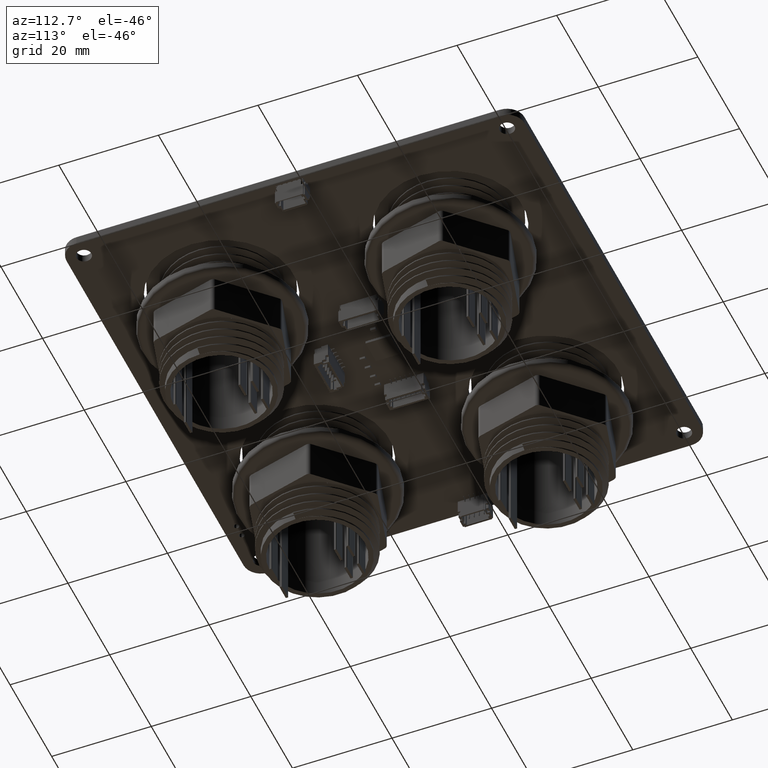
[diagram: clean part render]
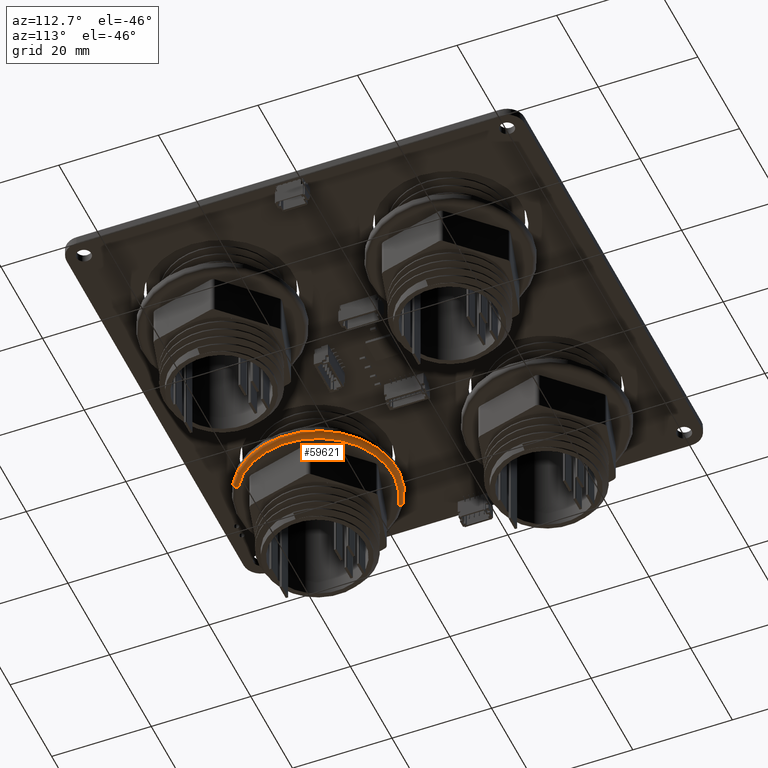
[diagram: same view with one face highlighted and labeled with its STEP entity id]
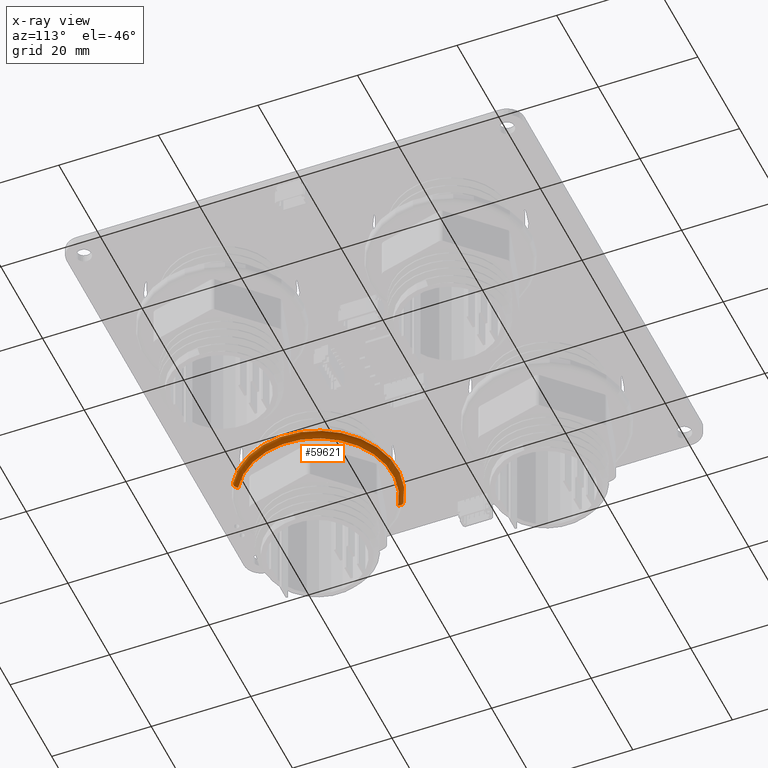
[diagram: x-ray of the same camera — body ghosted, the highlighted face saturated]
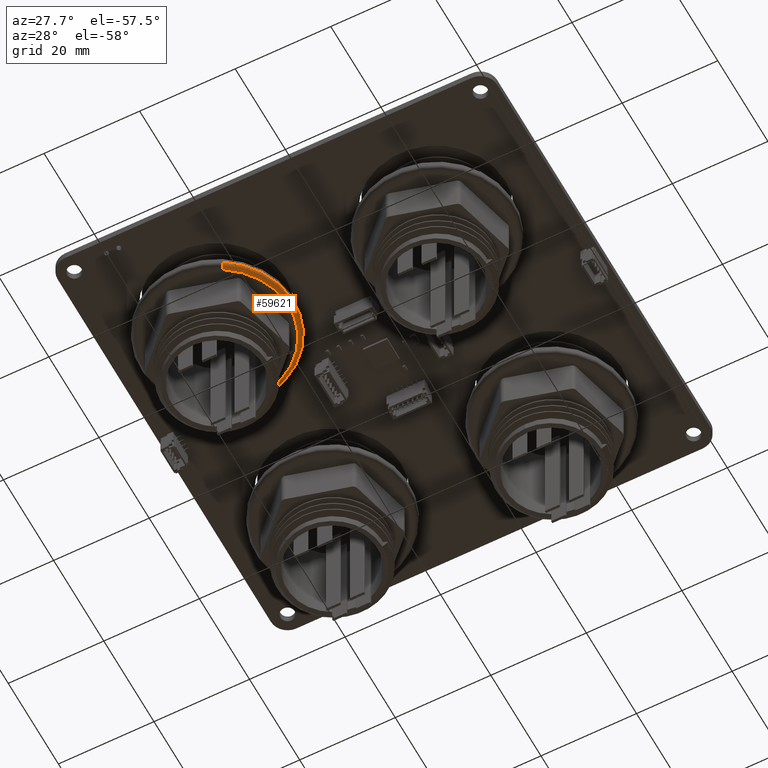
[diagram: same view with one face highlighted and labeled with its STEP entity id]
A machine part, auxiliary view. The second image highlights one B-rep face of the part: STEP entity #59621.
The next image is the same camera in x-ray: the body ghosted, the highlighted face saturated — about 0% of this face is hidden behind the body in this view.
A second angle (auxiliary view) of the same face is appended — the face is thin or edge-on in the first view.
In plain terms, the highlighted toroidal blend (fillet) surface has major radius 15 mm and minor (blend) radius 1 mm.
Its self-contained STEP definition (entity closure, byte-faithful):
#59426 = VERTEX_POINT('',#59427);
#59427 = CARTESIAN_POINT('',(1.898202538678E-15,0.,15.));
#59428 = VERTEX_POINT('',#59429);
#59429 = CARTESIAN_POINT('',(0.,0.,-15.));
#59436 = EDGE_CURVE('',#59426,#59437,#59439,.T.);
#59437 = VERTEX_POINT('',#59438);
#59438 = CARTESIAN_POINT('',(0.,-1.,16.));
#59439 = CIRCLE('',#59440,1.);
#59440 = AXIS2_PLACEMENT_3D('',#59441,#59442,#59443);
#59441 = CARTESIAN_POINT('',(1.836970198721E-15,-1.,15.));
#59442 = DIRECTION('',(1.,0.,-1.224646799147E-16));
#59443 = DIRECTION('',(-1.224646799147E-16,0.,-1.));
#59446 = VERTEX_POINT('',#59447);
#59447 = CARTESIAN_POINT('',(1.959434878636E-15,-1.,-16.));
#59454 = EDGE_CURVE('',#59428,#59446,#59455,.T.);
#59455 = CIRCLE('',#59456,1.);
#59456 = AXIS2_PLACEMENT_3D('',#59457,#59458,#59459);
#59457 = CARTESIAN_POINT('',(0.,-1.,-15.));
#59458 = DIRECTION('',(-1.,0.,-0.));
#59459 = DIRECTION('',(-0.,0.,1.));
#59569 = EDGE_CURVE('',#59428,#59426,#59570,.T.);
#59570 = CIRCLE('',#59571,15.);
#59571 = AXIS2_PLACEMENT_3D('',#59572,#59573,#59574);
#59572 = CARTESIAN_POINT('',(0.,0.,0.));
#59573 = DIRECTION('',(-0.,1.,0.));
#59574 = DIRECTION('',(0.,0.,-1.));
#59598 = EDGE_CURVE('',#59437,#59446,#59599,.T.);
#59599 = CIRCLE('',#59600,16.);
#59600 = AXIS2_PLACEMENT_3D('',#59601,#59602,#59603);
#59601 = CARTESIAN_POINT('',(0.,-1.,0.));
#59602 = DIRECTION('',(0.,-1.,0.));
#59603 = DIRECTION('',(0.,0.,-1.));
#59621 = ADVANCED_FACE('',(#59622),#59628,.T.);
#59622 = FACE_BOUND('',#59623,.T.);
#59623 = EDGE_LOOP('',(#59624,#59625,#59626,#59627));
#59624 = ORIENTED_EDGE('',*,*,#59436,.F.);
#59625 = ORIENTED_EDGE('',*,*,#59569,.F.);
#59626 = ORIENTED_EDGE('',*,*,#59454,.T.);
#59627 = ORIENTED_EDGE('',*,*,#59598,.F.);
#59628 = TOROIDAL_SURFACE('',#59629,15.,1.);
#59629 = AXIS2_PLACEMENT_3D('',#59630,#59631,#59632);
#59630 = CARTESIAN_POINT('',(0.,-1.,0.));
#59631 = DIRECTION('',(0.,-1.,0.));
#59632 = DIRECTION('',(0.,0.,-1.));